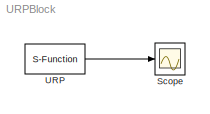
MODEL URPBlock
KIND model
CONFIG AbsTol = auto
CONFIG FixedStep = auto
CONFIG MaxStep = auto
CONFIG MinStep = auto
CONFIG RelTol = 1e-3
CONFIG Solver = ode45
CONFIG SolverMode = Auto
CONFIG StartTime = 0.0
CONFIG StopTime = 10.0
BLOCK [Scope] Scope
  DataFormat = StructureWithTime
  NumInputPorts = 1
  Ports = [1]
BLOCK [S-Function] URP
  FunctionName = URPFcn
  MaskCallbackString = |||
  MaskDescription = Output either the position, velocity or acceleration of the Unidirectional Rounded Pulse function.
  MaskDisplay = plot(t,y)
  MaskEnableString = on,on,on,on
  MaskHelp = Generate URP(t), URP'(t), or URP''(t).\n\n\nDescription:\nURP(t) = A*(e^2)/4*(g*w*t)^2*e^-g*w*t, where A is the amplitude, g (gamma) is the intensity factor, w (omega) is the circular frequency.\n\n\nAmplitude: \nThe amplitude of the pulse, a real number.\n\ngw:\nThe intensity factor multiplied by the frequency (gamma*omega), where T = (2*pi)/gw.\n\nOutput:\nSelect whether to output the URP, or it...<+71ch>
  MaskIconFrame = on
  MaskIconOpaque = on
  MaskIconRotate = none
  MaskIconUnits = normalized
  MaskInitialization = t = [0:0.01:1];\ny = exp(2)/4*(11)^2*exp(-t.*11).*t.^2;
  MaskPromptString = Amplitude:|Gamma*Omega:|Block Output:|Sample Time
  MaskStyleString = edit,edit,popup(Position|Velocity|Acceleration),edit
  MaskToolTipString = on,on,on,on
  MaskTunableValueString = on,on,on,on
  MaskType = Unidirectional Rounded Pulse (URP)
  MaskValueString = 1|5|Position|0
  MaskVarAliasString = ,,,
  MaskVariables = X=@1;gw=@2;Output=@3;SampleTime=@4;
  MaskVisibilityString = on,on,on,on
  Parameters = X, gw, Output, SampleTime
  Ports = [0, 1]
LINE URP:1 -> Scope:1
